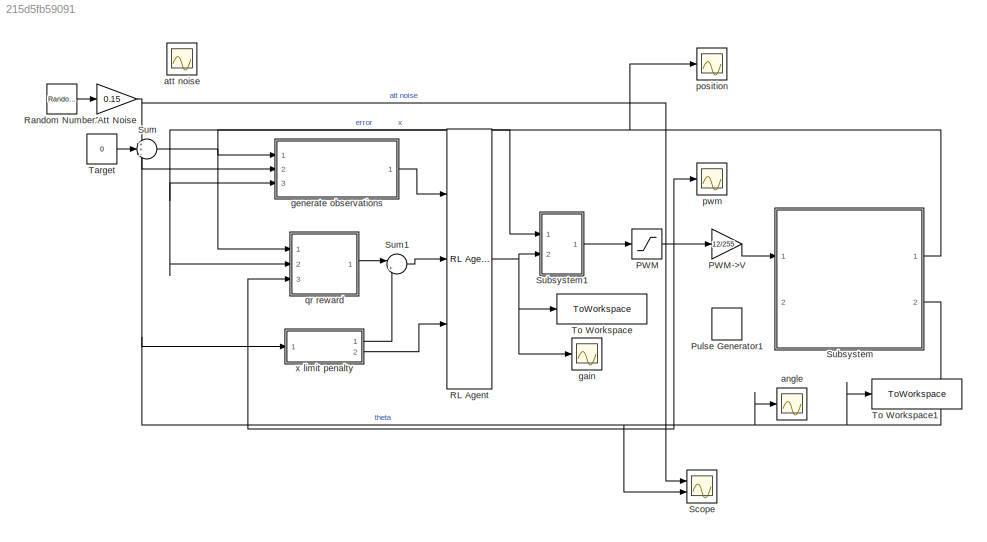
MODEL slx_215d5fb59091
KIND model
CONFIG AbsTol = auto
CONFIG EnableMultiTasking = off
CONFIG FixedStep = auto
CONFIG MaxStep = auto
CONFIG MinStep = auto
CONFIG RelTol = 1e-3
CONFIG SampleTimeConstraint = Unconstrained
CONFIG Solver = VariableStepAuto
CONFIG SolverName = VariableStepAuto
CONFIG StartTime = 0.0
CONFIG StopTime = 10.0
WORKSPACE source: mxarray member
WORKSPACE A_Kd = 68.7549354157
WORKSPACE A_Ki = 6875.49354157
WORKSPACE A_Kp = 859.436692696
WORKSPACE Body_M = 0.649
WORKSPACE Body_X = 0.13
WORKSPACE Body_Y = 0.14
WORKSPACE Body_Z = 0.08
WORKSPACE Jetson_X = 0.05
WORKSPACE Jetson_Y = 0.1
WORKSPACE Jetson_Z = 0.07
WORKSPACE M_J = 0.02
WORKSPACE M_Kb = 0.1
WORKSPACE M_Kf = 0.2
WORKSPACE M_Km = 0.1
WORKSPACE M_L = 0.2
WORKSPACE M_R = 8
WORKSPACE P_Kd = 5
WORKSPACE P_Ki = 0
WORKSPACE P_Kp = 15
WORKSPACE Ratio = 1.5
WORKSPACE Wheel_L = 0.03
WORKSPACE Wheel_M = 0.211
WORKSPACE Wheel_R = 0.055
WORKSPACE g = 9.81
WORKSPACE r2d = 57.2957795131
BLOCK [Gain] Att Noise
  Gain = 0.15
BLOCK [Saturate] PWM
  LowerLimit = -255
  UpperLimit = 255
BLOCK [Gain] PWM->V
  Gain = 12/255
BLOCK [DiscretePulseGenerator] Pulse Generator1
  Period = 20
  PhaseDelay = 1
  Ports = [0, 1]
  PulseType = Time based
  PulseWidth = 2
BLOCK [Reference] RL Agent  REF=rllib/RL Agent
  Ports = [3, 1]
  SourceBlock = rllib/RL Agent
  SourceProductBaseCode = RL
  SourceType = RL Agent
BLOCK [RandomNumber] Random Number2
  SampleTime = 0.01
BLOCK [Scope] Scope
  Floating = off
  NumInputPorts = 2
  Ports = [2]
  ScopeSpecificationString = Simulink.scopes.TimeScopeBlockCfg('CurrentConfiguration', extmgr.ConfigurationSet(extmgr.Configuration('Core','General UI',true,'FigureColor',[1 1 1]),extmgr.Configuration('Core','Source UI',true),extmgr.Configuration('Sources','WiredSimulink',true,'DataLoggingVariableName','ScopeData7'),extmgr.Configuration('Visuals','Time Domain',true,'SerializedDisplays',{struct('MinYLimReal','-0.56746','MaxYLi...<+1542ch>
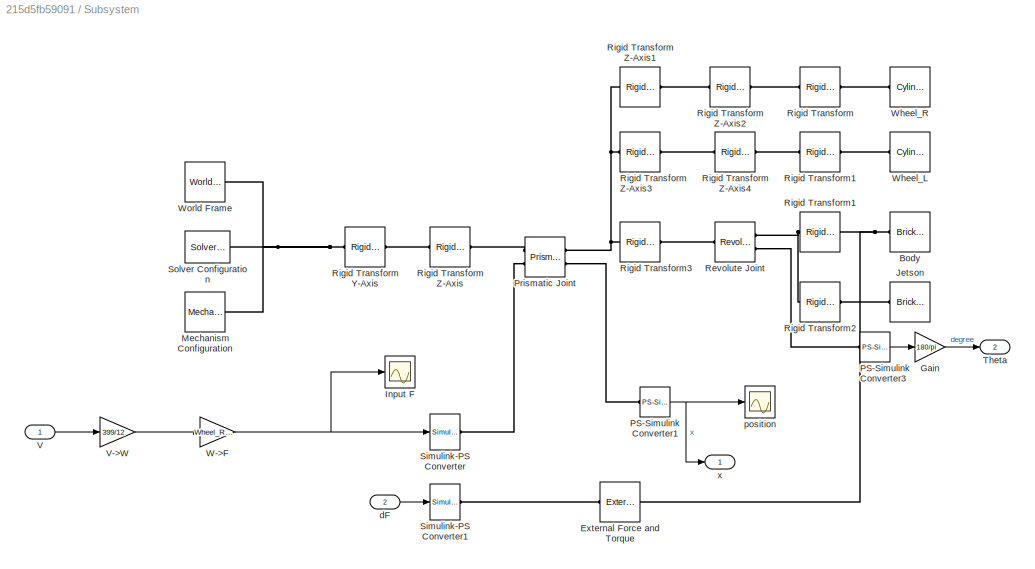
BLOCK [SubSystem] Subsystem
  Ports = [2, 2]
  RequestExecContextInheritance = off
BLOCK [Reference] Subsystem/Body  REF=sm_lib/Body Elements/Brick Solid
  NameLocation = top
  Ports = [0, 0, 0, 0, 0, 0, 1]
  SourceBlock = sm_lib/Body Elements/Brick Solid
  SourceProductBaseCode = MS
  SourceType = Brick Solid
BLOCK [Reference] Subsystem/External Force and Torque  REF=sm_lib/Forces and
Torques/External Force
and Torque
  Ports = [0, 0, 0, 0, 0, 1, 1]
  SourceBlock = sm_lib/Forces and\nTorques/External Force\nand Torque
  SourceProductBaseCode = MS
  SourceType = External Force\nand Torque
BLOCK [Gain] Subsystem/Gain
  Gain = 180/pi
BLOCK [Scope] Subsystem/Input F
  Floating = off
  NumInputPorts = 1
  Ports = [1]
  ScopeSpecificationString = Simulink.scopes.TimeScopeBlockCfg('CurrentConfiguration', extmgr.ConfigurationSet(extmgr.Configuration('Core','General UI',true),extmgr.Configuration('Core','Source UI',true),extmgr.Configuration('Sources','WiredSimulink',true,'DataLoggingVariableName','ScopeData6'),extmgr.Configuration('Visuals','Time Domain',true,'SerializedDisplays',{struct('MinYLimReal','-60.91475','MaxYLimReal','67.09595','YL...<+1433ch>
BLOCK [Reference] Subsystem/Jetson  REF=sm_lib/Body Elements/Brick Solid
  NameLocation = top
  Ports = [0, 0, 0, 0, 0, 0, 1]
  SourceBlock = sm_lib/Body Elements/Brick Solid
  SourceProductBaseCode = MS
  SourceType = Brick Solid
BLOCK [Reference] Subsystem/Mechanism Configuration  REF=sm_lib/Utilities/Mechanism
Configuration
  Ports = [0, 0, 0, 0, 0, 0, 1]
  SourceBlock = sm_lib/Utilities/Mechanism\nConfiguration
  SourceProductBaseCode = MS
  SourceType = Mechanism\nConfiguration
BLOCK [Reference] Subsystem/PS-Simulink Converter1  REF=nesl_utility/PS-Simulink
Converter
  Ports = [0, 1, 0, 0, 0, 1]
  SourceBlock = nesl_utility/PS-Simulink\nConverter
  SourceProductBaseCode = MT,SS
  SourceType = PS-Simulink\nConverter
BLOCK [Reference] Subsystem/PS-Simulink Converter3  REF=nesl_utility/PS-Simulink
Converter
  Ports = [0, 1, 0, 0, 0, 1]
  SourceBlock = nesl_utility/PS-Simulink\nConverter
  SourceProductBaseCode = MT,SS
  SourceType = PS-Simulink\nConverter
BLOCK [Reference] Subsystem/Prismatic Joint  REF=sm_lib/Joints/Prismatic
Joint
  Ports = [0, 0, 0, 0, 0, 2, 2]
  SourceBlock = sm_lib/Joints/Prismatic\nJoint
  SourceProductBaseCode = MS
  SourceType = Prismatic\nJoint
BLOCK [Reference] Subsystem/Revolute Joint  REF=sm_lib/Joints/Revolute Joint
  Ports = [0, 0, 0, 0, 0, 1, 2]
  SourceBlock = sm_lib/Joints/Revolute Joint
  SourceProductBaseCode = MS
  SourceType = Revolute Joint
BLOCK [Reference] Subsystem/Rigid Transform  REF=sm_lib/Frames and
Transforms/Rigid
Transform
  Ports = [0, 0, 0, 0, 0, 1, 1]
  SourceBlock = sm_lib/Frames and\nTransforms/Rigid\nTransform
  SourceProductBaseCode = MS
  SourceType = Rigid\nTransform
BLOCK [Reference] Subsystem/Rigid Transform Y-Axis  REF=sm_lib/Frames and
Transforms/Rigid
Transform
  Ports = [0, 0, 0, 0, 0, 1, 1]
  SourceBlock = sm_lib/Frames and\nTransforms/Rigid\nTransform
  SourceProductBaseCode = MS
  SourceType = Rigid\nTransform
BLOCK [Reference] Subsystem/Rigid Transform Z-Axis  REF=sm_lib/Frames and
Transforms/Rigid
Transform
  Ports = [0, 0, 0, 0, 0, 1, 1]
  SourceBlock = sm_lib/Frames and\nTransforms/Rigid\nTransform
  SourceProductBaseCode = MS
  SourceType = Rigid\nTransform
BLOCK [Reference] Subsystem/Rigid Transform Z-Axis1  REF=sm_lib/Frames and
Transforms/Rigid
Transform
  NameLocation = top
  Ports = [0, 0, 0, 0, 0, 1, 1]
  SourceBlock = sm_lib/Frames and\nTransforms/Rigid\nTransform
  SourceProductBaseCode = MS
  SourceType = Rigid\nTransform
BLOCK [Reference] Subsystem/Rigid Transform Z-Axis2  REF=sm_lib/Frames and
Transforms/Rigid
Transform
  NameLocation = top
  Ports = [0, 0, 0, 0, 0, 1, 1]
  SourceBlock = sm_lib/Frames and\nTransforms/Rigid\nTransform
  SourceProductBaseCode = MS
  SourceType = Rigid\nTransform
BLOCK [Reference] Subsystem/Rigid Transform Z-Axis3  REF=sm_lib/Frames and
Transforms/Rigid
Transform
  NameLocation = top
  Ports = [0, 0, 0, 0, 0, 1, 1]
  SourceBlock = sm_lib/Frames and\nTransforms/Rigid\nTransform
  SourceProductBaseCode = MS
  SourceType = Rigid\nTransform
BLOCK [Reference] Subsystem/Rigid Transform Z-Axis4  REF=sm_lib/Frames and
Transforms/Rigid
Transform
  NameLocation = top
  Ports = [0, 0, 0, 0, 0, 1, 1]
  SourceBlock = sm_lib/Frames and\nTransforms/Rigid\nTransform
  SourceProductBaseCode = MS
  SourceType = Rigid\nTransform
BLOCK [Reference] Subsystem/Rigid Transform1  REF=sm_lib/Frames and
Transforms/Rigid
Transform
  Ports = [0, 0, 0, 0, 0, 1, 1]
  SourceBlock = sm_lib/Frames and\nTransforms/Rigid\nTransform
  SourceProductBaseCode = MS
  SourceType = Rigid\nTransform
BLOCK [Reference] Subsystem/Rigid Transform2  REF=sm_lib/Frames and
Transforms/Rigid
Transform
  Ports = [0, 0, 0, 0, 0, 1, 1]
  SourceBlock = sm_lib/Frames and\nTransforms/Rigid\nTransform
  SourceProductBaseCode = MS
  SourceType = Rigid\nTransform
BLOCK [Reference] Subsystem/Rigid Transform3  REF=sm_lib/Frames and
Transforms/Rigid
Transform
  Ports = [0, 0, 0, 0, 0, 1, 1]
  SourceBlock = sm_lib/Frames and\nTransforms/Rigid\nTransform
  SourceProductBaseCode = MS
  SourceType = Rigid\nTransform
BLOCK [Reference] Subsystem/Simulink-PS Converter  REF=nesl_utility/Simulink-PS
Converter
  Ports = [1, 0, 0, 0, 0, 0, 1]
  SourceBlock = nesl_utility/Simulink-PS\nConverter
  SourceProductBaseCode = MT,SS
  SourceType = Simulink-PS\nConverter
BLOCK [Reference] Subsystem/Simulink-PS Converter1  REF=nesl_utility/Simulink-PS
Converter
  Ports = [1, 0, 0, 0, 0, 0, 1]
  SourceBlock = nesl_utility/Simulink-PS\nConverter
  SourceProductBaseCode = MT,SS
  SourceType = Simulink-PS\nConverter
BLOCK [Reference] Subsystem/Solver Configuration  REF=nesl_utility/Solver
Configuration
  Ports = [0, 0, 0, 0, 0, 0, 1]
  SourceBlock = nesl_utility/Solver\nConfiguration
  SourceProductBaseCode = MT,SS
  SourceType = Solver\nConfiguration
BLOCK [Outport] Subsystem/Theta
  Port = 2
BLOCK [Inport] Subsystem/V
BLOCK [Gain] Subsystem/V->W
  Gain = 399/12
BLOCK [Gain] Subsystem/W->F
  Gain = Wheel_R*2*pi*(Body_M+Wheel_M*2)
BLOCK [Reference] Subsystem/Wheel_L  REF=sm_lib/Body Elements/Cylindrical Solid
  NameLocation = top
  Ports = [0, 0, 0, 0, 0, 0, 1]
  SourceBlock = sm_lib/Body Elements/Cylindrical Solid
  SourceProductBaseCode = MS
  SourceType = Cylindrical Solid
BLOCK [Reference] Subsystem/Wheel_R  REF=sm_lib/Body Elements/Cylindrical Solid
  NameLocation = top
  Ports = [0, 0, 0, 0, 0, 0, 1]
  SourceBlock = sm_lib/Body Elements/Cylindrical Solid
  SourceProductBaseCode = MS
  SourceType = Cylindrical Solid
BLOCK [Reference] Subsystem/World Frame  REF=sm_lib/Frames and
Transforms/World Frame
  Ports = [0, 0, 0, 0, 0, 0, 1]
  SourceBlock = sm_lib/Frames and\nTransforms/World Frame
  SourceProductBaseCode = MS
  SourceType = World Frame
BLOCK [Inport] Subsystem/dF
  Port = 2
BLOCK [Scope] Subsystem/position
  Floating = off
  NumInputPorts = 1
  Ports = [1]
  ScopeSpecificationString = Simulink.scopes.TimeScopeBlockCfg('CurrentConfiguration', extmgr.ConfigurationSet(extmgr.Configuration('Core','General UI',true),extmgr.Configuration('Core','Source UI',true),extmgr.Configuration('Sources','WiredSimulink',true,'DataLoggingVariableName','ScopeData4'),extmgr.Configuration('Visuals','Time Domain',true,'SerializedDisplays',{struct('MinYLimReal','-0.16194','MaxYLimReal','1.45746','YLab...<+1414ch>
BLOCK [Outport] Subsystem/x
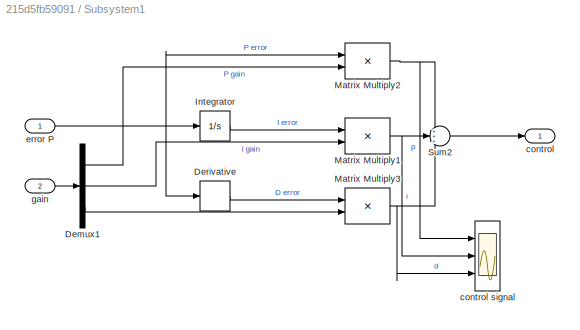
BLOCK [SubSystem] Subsystem1
  Ports = [2, 1]
  RequestExecContextInheritance = off
BLOCK [Demux] Subsystem1/Demux1
  Outputs = 3
  Ports = [1, 3]
BLOCK [Derivative] Subsystem1/Derivative
BLOCK [Integrator] Subsystem1/Integrator
  Ports = [1, 1]
BLOCK [Product] Subsystem1/Matrix Multiply1
  Inputs = **
  Ports = [2, 1]
BLOCK [Product] Subsystem1/Matrix Multiply2
  Inputs = **
  Ports = [2, 1]
BLOCK [Product] Subsystem1/Matrix Multiply3
  Inputs = **
  Ports = [2, 1]
BLOCK [Sum] Subsystem1/Sum2
  Inputs = +++
  Ports = [3, 1]
BLOCK [Outport] Subsystem1/control
BLOCK [Scope] Subsystem1/control signal
  Floating = off
  NumInputPorts = 3
  Ports = [3]
  ScopeSpecificationString = Simulink.scopes.TimeScopeBlockCfg('CurrentConfiguration', extmgr.ConfigurationSet(extmgr.Configuration('Core','General UI',true,'FigureColor',[1 1 1]),extmgr.Configuration('Core','Source UI',true),extmgr.Configuration('Sources','WiredSimulink',true,'DataLoggingVariableName','ScopeData3'),extmgr.Configuration('Visuals','Time Domain',true,'SerializedDisplays',{struct('MinYLimReal','-61158375.46677',...<+1927ch>
BLOCK [Inport] Subsystem1/error P
BLOCK [Inport] Subsystem1/gain
  Port = 2
BLOCK [Sum] Sum
  Inputs = ++-
  Ports = [3, 1]
BLOCK [Sum] Sum1
  Inputs = |++
  Ports = [2, 1]
BLOCK [Constant] Target
  Value = 0
BLOCK [ToWorkspace] To Workspace
  FixptAsFi = on
  MaxDataPoints = inf
  Ports = [1]
  SampleTime = -1
  VariableName = gain
BLOCK [ToWorkspace] To Workspace1
  FixptAsFi = on
  MaxDataPoints = inf
  Ports = [1]
  SampleTime = -1
  VariableName = angle
BLOCK [Scope] angle
  Floating = off
  NumInputPorts = 1
  Ports = [1]
  ScopeSpecificationString = Simulink.scopes.TimeScopeBlockCfg('CurrentConfiguration', extmgr.ConfigurationSet(extmgr.Configuration('Core','General UI',true,'FigureColor',[1 1 1]),extmgr.Configuration('Core','Source UI',true),extmgr.Configuration('Sources','WiredSimulink',true,'DataLoggingVariableName','ScopeData6'),extmgr.Configuration('Visuals','Time Domain',true,'SerializedDisplays',{struct('MinYLimReal','-0.1368','MaxYLim...<+1576ch>
BLOCK [Scope] att noise
  Floating = off
  NumInputPorts = 1
  Ports = [1]
  ScopeSpecificationString = Simulink.scopes.TimeScopeBlockCfg('CurrentConfiguration', extmgr.ConfigurationSet(extmgr.Configuration('Core','General UI',true),extmgr.Configuration('Core','Source UI',true),extmgr.Configuration('Sources','WiredSimulink',true,'DataLoggingVariableName','ScopeData1'),extmgr.Configuration('Visuals','Time Domain',true,'SerializedDisplays',{struct('MinYLimReal','-1.00000','MaxYLimReal','1.00000','YLab...<+1451ch>
BLOCK [Scope] gain
  Floating = off
  NumInputPorts = 1
  Ports = [1]
  ScopeSpecificationString = Simulink.scopes.TimeScopeBlockCfg('CurrentConfiguration', extmgr.ConfigurationSet(extmgr.Configuration('Core','General UI',true,'FigureColor',[1 1 1]),extmgr.Configuration('Core','Source UI',true),extmgr.Configuration('Sources','WiredSimulink',true,'DataLoggingVariableName','ScopeData2'),extmgr.Configuration('Visuals','Time Domain',true,'SerializedDisplays',{struct('MinYLimReal','-65.08162','MaxYL...<+1874ch>
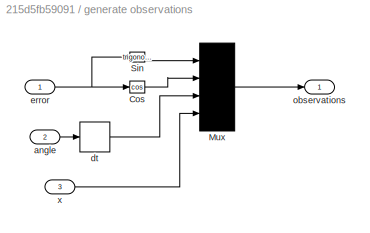
BLOCK [SubSystem] generate observations
  Ports = [3, 1]
  RequestExecContextInheritance = off
BLOCK [Trigonometry] generate observations/Cos
  Operator = cos
  Ports = [1, 1]
BLOCK [Mux] generate observations/Mux
  DisplayOption = bar
  Ports = [4, 1]
BLOCK [Trigonometry] generate observations/Sin
  Ports = [1, 1]
BLOCK [Inport] generate observations/angle
  Port = 2
BLOCK [Derivative] generate observations/dt
BLOCK [Inport] generate observations/error
BLOCK [Outport] generate observations/observations
  VectorParamsAs1DForOutWhenUnconnected = off
BLOCK [Inport] generate observations/x
  Port = 3
BLOCK [Scope] position
  Floating = off
  NumInputPorts = 1
  Ports = [1]
  ScopeSpecificationString = Simulink.scopes.TimeScopeBlockCfg('CurrentConfiguration', extmgr.ConfigurationSet(extmgr.Configuration('Core','General UI',true,'FigureColor',[1 1 1]),extmgr.Configuration('Core','Source UI',true),extmgr.Configuration('Sources','WiredSimulink',true,'DataLoggingVariableName','ScopeData5'),extmgr.Configuration('Visuals','Time Domain',true,'SerializedDisplays',{struct('MinYLimReal','-1.454','MaxYLimR...<+1569ch>
BLOCK [Scope] pwm
  Floating = off
  NumInputPorts = 1
  Ports = [1]
  ScopeSpecificationString = Simulink.scopes.TimeScopeBlockCfg('CurrentConfiguration', extmgr.ConfigurationSet(extmgr.Configuration('Core','General UI',true,'FigureColor',[1 1 1]),extmgr.Configuration('Core','Source UI',true),extmgr.Configuration('Sources','WiredSimulink',true,'DataLoggingVariableName','ScopeData4'),extmgr.Configuration('Visuals','Time Domain',true,'SerializedDisplays',{struct('MinYLimReal','-318.75','MaxYLim...<+1561ch>
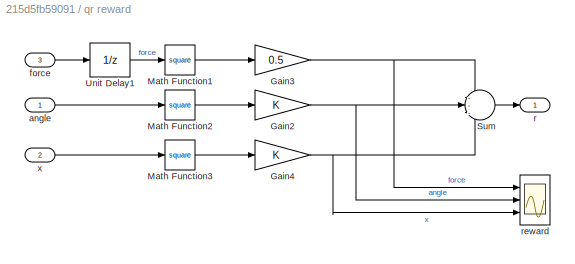
BLOCK [SubSystem] qr reward
  Ports = [3, 1]
  RequestExecContextInheritance = off
BLOCK [Gain] qr reward/Gain2
BLOCK [Gain] qr reward/Gain3
  Gain = 0.5
BLOCK [Gain] qr reward/Gain4
BLOCK [Math] qr reward/Math Function1
  Operator = square
  Ports = [1, 1]
BLOCK [Math] qr reward/Math Function2
  Operator = square
  Ports = [1, 1]
BLOCK [Math] qr reward/Math Function3
  Operator = square
  Ports = [1, 1]
BLOCK [Sum] qr reward/Sum
  Inputs = ---
  Ports = [3, 1]
BLOCK [UnitDelay] qr reward/Unit Delay1
  HasFrameUpgradeWarning = on
  SampleTime = Ts
BLOCK [Inport] qr reward/angle
BLOCK [Inport] qr reward/force
  Port = 3
BLOCK [Outport] qr reward/r
  VectorParamsAs1DForOutWhenUnconnected = off
BLOCK [Scope] qr reward/reward
  Floating = off
  NumInputPorts = 3
  Ports = [3]
  ScopeSpecificationString = Simulink.scopes.TimeScopeBlockCfg('CurrentConfiguration', extmgr.ConfigurationSet(extmgr.Configuration('Core','General UI',true,'FigureColor',[1 1 1]),extmgr.Configuration('Core','Source UI',true),extmgr.Configuration('Sources','WiredSimulink',true,'DataLoggingVariableName','ScopeData1'),extmgr.Configuration('Visuals','Time Domain',true,'SerializedDisplays',{struct('MinYLimReal','-4064.0625','MaxY...<+1897ch>
BLOCK [Inport] qr reward/x
  Port = 2
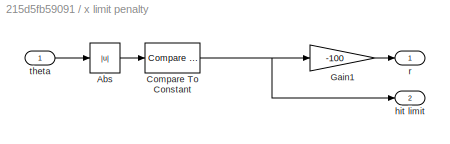
BLOCK [SubSystem] x limit penalty
  Ports = [1, 2]
  RequestExecContextInheritance = off
BLOCK [Abs] x limit penalty/Abs
  SaturateOnIntegerOverflow = off
BLOCK [Reference] x limit penalty/Compare To Constant  REF=simulink/Logic and Bit
Operations/Compare
To Constant
  Ports = [1, 1]
  SourceBlock = simulink/Logic and Bit\nOperations/Compare\nTo Constant
  SourceProductBaseCode = SL
  SourceType = Compare To Constant
BLOCK [Gain] x limit penalty/Gain1
  Gain = -100
BLOCK [Outport] x limit penalty/hit limit
  Port = 2
  VectorParamsAs1DForOutWhenUnconnected = off
BLOCK [Outport] x limit penalty/r
  VectorParamsAs1DForOutWhenUnconnected = off
BLOCK [Inport] x limit penalty/theta
NET Att Noise:1 -> Scope:1, Sum:1
LINE PWM->V:1 -> Subsystem:1
NET PWM:1 -> PWM->V:1, pwm:1, qr reward:3
NET RL Agent:1 -> Subsystem1:2, To Workspace:1, gain:1
LINE Random Number2:1 -> Att Noise:1
LINE Subsystem/Gain:1 -> Subsystem/Theta:1
NET Subsystem/PS-Simulink Converter1:1 -> Subsystem/position:1, Subsystem/x:1
LINE Subsystem/PS-Simulink Converter3:1 -> Subsystem/Gain:1
LINE Subsystem/V->W:1 -> Subsystem/W->F:1
LINE Subsystem/V:1 -> Subsystem/V->W:1
NET Subsystem/W->F:1 -> Subsystem/Input F:1, Subsystem/Simulink-PS Converter:1
LINE Subsystem/dF:1 -> Subsystem/Simulink-PS Converter1:1
LINE Subsystem1/Demux1:1 -> Subsystem1/Matrix Multiply2:2
LINE Subsystem1/Demux1:2 -> Subsystem1/Matrix Multiply1:2
LINE Subsystem1/Demux1:3 -> Subsystem1/Matrix Multiply3:2
LINE Subsystem1/Derivative:1 -> Subsystem1/Matrix Multiply3:1
LINE Subsystem1/Integrator:1 -> Subsystem1/Matrix Multiply1:1
NET Subsystem1/Matrix Multiply1:1 -> Subsystem1/Sum2:2, Subsystem1/control signal:2
NET Subsystem1/Matrix Multiply2:1 -> Subsystem1/Sum2:1, Subsystem1/control signal:1
NET Subsystem1/Matrix Multiply3:1 -> Subsystem1/Sum2:3, Subsystem1/control signal:3
LINE Subsystem1/Sum2:1 -> Subsystem1/control:1
NET Subsystem1/error P:1 -> Subsystem1/Derivative:1, Subsystem1/Integrator:1, Subsystem1/Matrix Multiply2:1
LINE Subsystem1/gain:1 -> Subsystem1/Demux1:1
LINE Subsystem1:1 -> PWM:1
NET Subsystem:1 -> generate observations:3, position:1, qr reward:2
NET Subsystem:2 -> Scope:2, Sum:3, To Workspace1:1, angle:1, generate observations:2, x limit penalty:1
LINE Sum1:1 -> RL Agent:2
NET Sum:1 -> Subsystem1:1, generate observations:1, qr reward:1
LINE Target:1 -> Sum:2
LINE generate observations/Cos:1 -> generate observations/Mux:2
LINE generate observations/Mux:1 -> generate observations/observations:1
LINE generate observations/Sin:1 -> generate observations/Mux:1
LINE generate observations/angle:1 -> generate observations/dt:1
LINE generate observations/dt:1 -> generate observations/Mux:3
NET generate observations/error:1 -> generate observations/Cos:1, generate observations/Sin:1
LINE generate observations/x:1 -> generate observations/Mux:4
LINE generate observations:1 -> RL Agent:1
NET qr reward/Gain2:1 -> qr reward/Sum:2, qr reward/reward:2
NET qr reward/Gain3:1 -> qr reward/Sum:1, qr reward/reward:1
NET qr reward/Gain4:1 -> qr reward/Sum:3, qr reward/reward:3
LINE qr reward/Math Function1:1 -> qr reward/Gain3:1
LINE qr reward/Math Function2:1 -> qr reward/Gain2:1
LINE qr reward/Math Function3:1 -> qr reward/Gain4:1
LINE qr reward/Sum:1 -> qr reward/r:1
LINE qr reward/Unit Delay1:1 -> qr reward/Math Function1:1
LINE qr reward/angle:1 -> qr reward/Math Function2:1
LINE qr reward/force:1 -> qr reward/Unit Delay1:1
LINE qr reward/x:1 -> qr reward/Math Function3:1
LINE qr reward:1 -> Sum1:1
LINE x limit penalty/Abs:1 -> x limit penalty/Compare To Constant:1
NET x limit penalty/Compare To Constant:1 -> x limit penalty/Gain1:1, x limit penalty/hit limit:1
LINE x limit penalty/Gain1:1 -> x limit penalty/r:1
LINE x limit penalty/theta:1 -> x limit penalty/Abs:1
LINE x limit penalty:1 -> Sum1:2
LINE x limit penalty:2 -> RL Agent:3
PNET net1: Subsystem/Body:RConn1 -- Subsystem/External Force and Torque:RConn1 -- Subsystem/Rigid Transform1:RConn1 -- Subsystem/Wheel_L:RConn1
PLINE Subsystem/External Force and Torque:LConn1 -- Subsystem/Simulink-PS Converter1:RConn1
PLINE Subsystem/Jetson:RConn1 -- Subsystem/Rigid Transform2:RConn1
PNET net2: Subsystem/Mechanism Configuration:RConn1 -- Subsystem/Rigid Transform Y-Axis:LConn1 -- Subsystem/Solver Configuration:RConn1 -- Subsystem/World Frame:RConn1
PLINE Subsystem/PS-Simulink Converter1:LConn1 -- Subsystem/Prismatic Joint:RConn2
PLINE Subsystem/PS-Simulink Converter3:LConn1 -- Subsystem/Revolute Joint:RConn2
PLINE Subsystem/Prismatic Joint:LConn1 -- Subsystem/Rigid Transform Z-Axis:RConn1
PLINE Subsystem/Prismatic Joint:LConn2 -- Subsystem/Simulink-PS Converter:RConn1
PNET net3: Subsystem/Prismatic Joint:RConn1 -- Subsystem/Rigid Transform Z-Axis1:RConn1 -- Subsystem/Rigid Transform Z-Axis3:RConn1 -- Subsystem/Rigid Transform3:LConn1
PLINE Subsystem/Revolute Joint:LConn1 -- Subsystem/Rigid Transform3:RConn1
PNET net4: Subsystem/Revolute Joint:RConn1 -- Subsystem/Rigid Transform Z-Axis4:LConn1 -- Subsystem/Rigid Transform1:LConn1 -- Subsystem/Rigid Transform2:LConn1
PLINE Subsystem/Rigid Transform Y-Axis:RConn1 -- Subsystem/Rigid Transform Z-Axis:LConn1
PLINE Subsystem/Rigid Transform Z-Axis1:LConn1 -- Subsystem/Rigid Transform Z-Axis2:RConn1
PLINE Subsystem/Rigid Transform Z-Axis2:LConn1 -- Subsystem/Rigid Transform:LConn1
PLINE Subsystem/Rigid Transform Z-Axis3:LConn1 -- Subsystem/Rigid Transform Z-Axis4:RConn1
PLINE Subsystem/Rigid Transform:RConn1 -- Subsystem/Wheel_R:RConn1
note: NET lines group one-source signal fan-out (src -> all destinations, sorted); 1:1 wires keep LINE; PNET lines group multi-terminal physical nets as a canonical sorted terminal list (undirected conserving connections); 2-terminal nets keep the pairwise PLINE form
